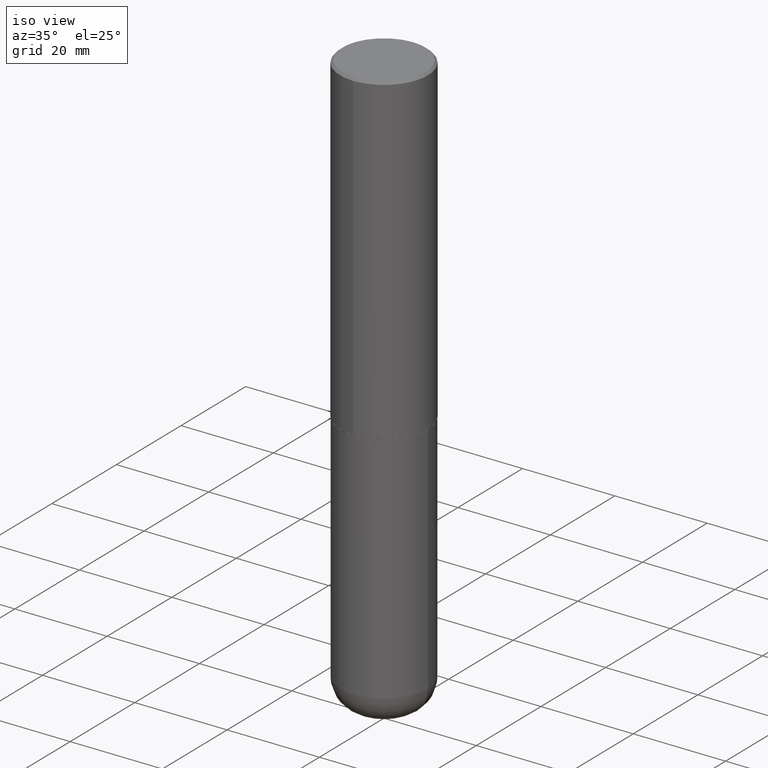
[diagram: clean part render]
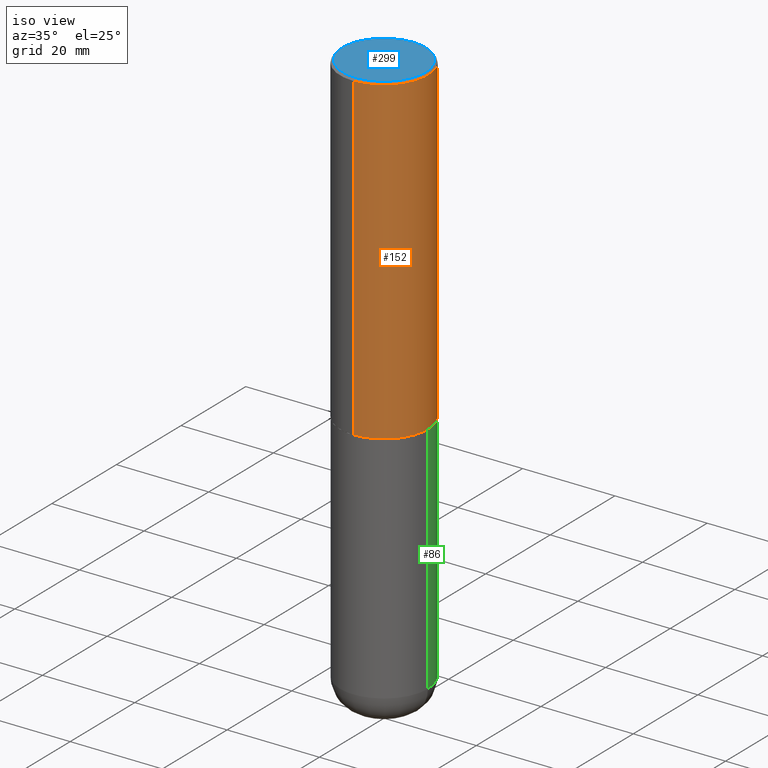
[diagram: same view with three faces highlighted in distinct colors, each labeled with its STEP entity id]
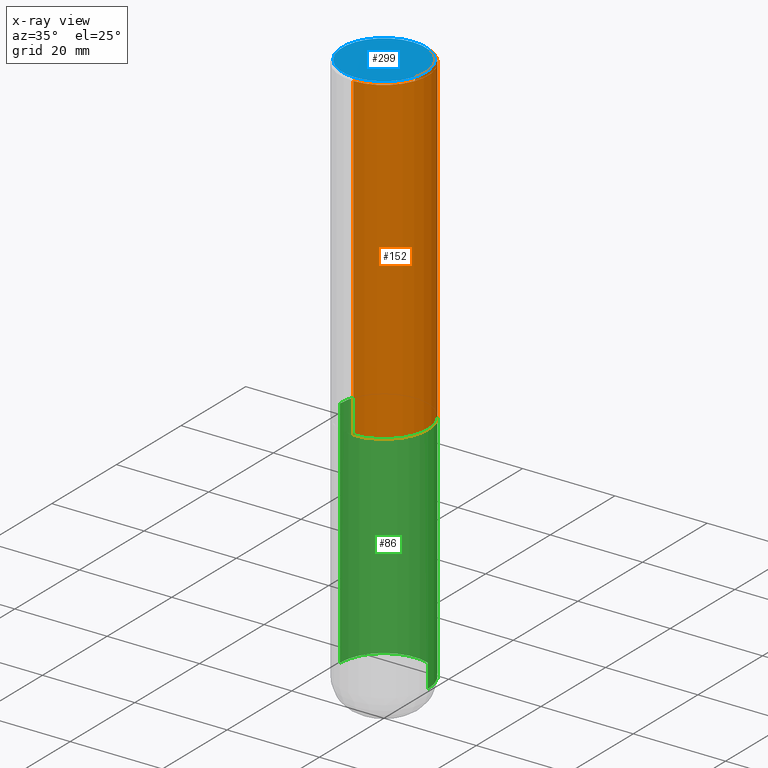
[diagram: x-ray of the same camera — body ghosted, the three highlighted faces saturated]
A machine part, iso view with three faces highlighted in distinct colors.
The next image is the same camera in x-ray (body ghosted, the three faces saturated) — at least one of them is partly hidden behind the body in this view.
Their STEP definitions:

[orange] entity #152 — the highlighted cylindrical surface (partial cylindrical patch) has radius 9.525 mm, axis along (-0, 0, 1).
#6 = DIRECTION ( 'NONE',  ( -2.446040391741596606E-29, 3.490662795793665557E-15, 1.000000000000000000 ) ) ;
#16 = ORIENTED_EDGE ( 'NONE', *, *, #169, .T. ) ;
#26 = CARTESIAN_POINT ( 'NONE',  ( 2.618611004132350411E-15, 0.3749999999999999445, -0.02000000000000139513 ) ) ;
#48 = DIRECTION ( 'NONE',  ( -2.446040391741596606E-29, 3.490662795793665557E-15, 1.000000000000000000 ) ) ;
#51 = EDGE_CURVE ( 'NONE', #219, #175, #197, .T. ) ;
#54 = AXIS2_PLACEMENT_3D ( 'NONE', #114, #48, #309 ) ;
#101 = VERTEX_POINT ( 'NONE', #26 ) ;
#108 = DIRECTION ( 'NONE',  ( -2.446040391741596606E-29, 3.490662795793665557E-15, 1.000000000000000000 ) ) ;
#113 = AXIS2_PLACEMENT_3D ( 'NONE', #397, #108, #243 ) ;
#114 = CARTESIAN_POINT ( 'NONE',  ( 6.724165036897648492E-29, -9.595832025636787455E-15, -2.749000000000000110 ) ) ;
#126 = CYLINDRICAL_SURFACE ( 'NONE', #178, 0.3750000000000002220 ) ;
#130 = DIRECTION ( 'NONE',  ( -2.446040391741596606E-29, 3.490662795793665557E-15, 1.000000000000000000 ) ) ;
#146 = VERTEX_POINT ( 'NONE', #192 ) ;
#148 = VECTOR ( 'NONE', #6, 39.37007874015748143 ) ;
#152 = ADVANCED_FACE ( 'NONE', ( #196 ), #126, .T. ) ;
#169 = EDGE_CURVE ( 'NONE', #175, #101, #381, .T. ) ;
#175 = VERTEX_POINT ( 'NONE', #355 ) ;
#178 = AXIS2_PLACEMENT_3D ( 'NONE', #352, #130, #258 ) ;
#189 = CARTESIAN_POINT ( 'NONE',  ( 2.664535259100376880E-15, 0.3750000000000002220, -1.308998548422625521E-15 ) ) ;
#192 = CARTESIAN_POINT ( 'NONE',  ( -2.572686749164323547E-15, -0.3750000000000001110, -0.01999999999999877570 ) ) ;
#194 = DIRECTION ( 'NONE',  ( -2.446040391741596606E-29, 3.490662795793665557E-15, 1.000000000000000000 ) ) ;
#196 = FACE_OUTER_BOUND ( 'NONE', #393, .T. ) ;
#197 = CIRCLE ( 'NONE', #54, 0.3750000000000003886 ) ;
#206 = ORIENTED_EDGE ( 'NONE', *, *, #408, .F. ) ;
#219 = VERTEX_POINT ( 'NONE', #227 ) ;
#227 = CARTESIAN_POINT ( 'NONE',  ( -2.618611004132284935E-15, -0.3750000000000099920, -2.748999999999999222 ) ) ;
#237 = LINE ( 'NONE', #392, #148 ) ;
#243 = DIRECTION ( 'NONE',  ( -6.982962677686265922E-15, -1.000000000000000000, 3.494488891895536035E-15 ) ) ;
#258 = DIRECTION ( 'NONE',  ( -6.982962677686266711E-15, -1.000000000000000000, 3.490662795793665951E-15 ) ) ;
#267 = ORIENTED_EDGE ( 'NONE', *, *, #331, .F. ) ;
#297 = CIRCLE ( 'NONE', #113, 0.3750000000000000555 ) ;
#309 = DIRECTION ( 'NONE',  ( -6.982962677686265922E-15, -1.000000000000000000, 2.913971193241877611E-15 ) ) ;
#322 = VECTOR ( 'NONE', #194, 39.37007874015748143 ) ;
#331 = EDGE_CURVE ( 'NONE', #219, #146, #237, .T. ) ;
#337 = ORIENTED_EDGE ( 'NONE', *, *, #51, .T. ) ;
#352 = CARTESIAN_POINT ( 'NONE',  ( 0.000000000000000000, 0.000000000000000000, 0.000000000000000000 ) ) ;
#355 = CARTESIAN_POINT ( 'NONE',  ( 2.664535259100411196E-15, 0.3749999999999907296, -2.749000000000000998 ) ) ;
#381 = LINE ( 'NONE', #189, #322 ) ;
#392 = CARTESIAN_POINT ( 'NONE',  ( -2.618611004132351594E-15, -0.3750000000000002220, 1.308998548422625521E-15 ) ) ;
#393 = EDGE_LOOP ( 'NONE', ( #337, #16, #206, #267 ) ) ;
#397 = CARTESIAN_POINT ( 'NONE',  ( 4.892080783483214581E-31, -6.981325591587361238E-17, -0.02000000000000008715 ) ) ;
#408 = EDGE_CURVE ( 'NONE', #146, #101, #297, .T. ) ;

[blue] entity #299 — the highlighted planar face has unit normal (0, -0, -1).
#14 = ORIENTED_EDGE ( 'NONE', *, *, #173, .T. ) ;
#20 = EDGE_CURVE ( 'NONE', #395, #275, #378, .T. ) ;
#45 = EDGE_LOOP ( 'NONE', ( #296, #14 ) ) ;
#147 = DIRECTION ( 'NONE',  ( -6.982962677686265922E-15, -1.000000000000000000, 3.490662795793665557E-15 ) ) ;
#154 = DIRECTION ( 'NONE',  ( -2.446040391741596606E-29, 3.490662795793665557E-15, 1.000000000000000000 ) ) ;
#170 = CARTESIAN_POINT ( 'NONE',  ( 2.548781377355487113E-15, 0.3549999999999999822, -1.192522237898212341E-15 ) ) ;
#173 = EDGE_CURVE ( 'NONE', #275, #395, #242, .T. ) ;
#176 = FACE_OUTER_BOUND ( 'NONE', #45, .T. ) ;
#200 = DIRECTION ( 'NONE',  ( 2.446040391741596045E-29, -3.490662795793665557E-15, -1.000000000000000000 ) ) ;
#221 = CARTESIAN_POINT ( 'NONE',  ( -2.504081769186608216E-15, -0.3549999999999999822, 1.285848347115290366E-15 ) ) ;
#231 = CARTESIAN_POINT ( 'NONE',  ( -1.141397163745304909E-45, 1.628849886601155835E-31, 4.666305460853910467E-17 ) ) ;
#242 = CIRCLE ( 'NONE', #341, 0.3549999999999999822 ) ;
#265 = CARTESIAN_POINT ( 'NONE',  ( 2.478951750578624209E-15, 0.3549999999999999822, -1.215853765202481601E-15 ) ) ;
#266 = AXIS2_PLACEMENT_3D ( 'NONE', #265, #200, #301 ) ;
#275 = VERTEX_POINT ( 'NONE', #221 ) ;
#296 = ORIENTED_EDGE ( 'NONE', *, *, #20, .T. ) ;
#298 = PLANE ( 'NONE',  #266 ) ;
#299 = ADVANCED_FACE ( 'NONE', ( #176 ), #298, .F. ) ;
#301 = DIRECTION ( 'NONE',  ( 6.982962677686265922E-15, 1.000000000000000000, -3.490662795793665557E-15 ) ) ;
#320 = DIRECTION ( 'NONE',  ( -6.982962677686265922E-15, -1.000000000000000000, 3.490662795793665557E-15 ) ) ;
#341 = AXIS2_PLACEMENT_3D ( 'NONE', #231, #387, #320 ) ;
#376 = CARTESIAN_POINT ( 'NONE',  ( -1.141397163745304909E-45, 1.628849886601155835E-31, 4.666305460853910467E-17 ) ) ;
#378 = CIRCLE ( 'NONE', #410, 0.3549999999999999822 ) ;
#387 = DIRECTION ( 'NONE',  ( -2.446040391741596606E-29, 3.490662795793665557E-15, 1.000000000000000000 ) ) ;
#395 = VERTEX_POINT ( 'NONE', #170 ) ;
#410 = AXIS2_PLACEMENT_3D ( 'NONE', #376, #154, #147 ) ;

[green] entity #86 — the highlighted cylindrical surface (partial cylindrical patch) has radius 9.525 mm, axis along (-0, 0, 1).
#21 = CARTESIAN_POINT ( 'NONE',  ( 0.000000000000000000, 0.000000000000000000, 0.000000000000000000 ) ) ;
#29 = DIRECTION ( 'NONE',  ( -2.445468806185136877E-29, 3.491481338843145188E-15, 1.000000000000000000 ) ) ;
#40 = DIRECTION ( 'NONE',  ( 1.000000000000000000, -6.982962677686266711E-15, 0.000000000000000000 ) ) ;
#52 = DIRECTION ( 'NONE',  ( 1.000000000000000000, -6.982962677686266711E-15, 4.876176775795935793E-29 ) ) ;
#56 = CARTESIAN_POINT ( 'NONE',  ( 0.3749999999999999445, -2.618611004132349622E-15, 1.828566290923475642E-29 ) ) ;
#60 = CARTESIAN_POINT ( 'NONE',  ( -0.3750000000000002220, -1.392000110040456296E-14, -4.750000000000000000 ) ) ;
#86 = ADVANCED_FACE ( 'NONE', ( #183 ), #281, .T. ) ;
#92 = CARTESIAN_POINT ( 'NONE',  ( 1.161597682937940108E-28, -1.658453635950494339E-14, -4.750000000000000000 ) ) ;
#105 = ORIENTED_EDGE ( 'NONE', *, *, #286, .F. ) ;
#106 = EDGE_CURVE ( 'NONE', #245, #117, #107, .T. ) ;
#107 = CIRCLE ( 'NONE', #311, 0.3749999999999999445 ) ;
#117 = VERTEX_POINT ( 'NONE', #60 ) ;
#136 = ORIENTED_EDGE ( 'NONE', *, *, #106, .T. ) ;
#139 = CARTESIAN_POINT ( 'NONE',  ( 6.725039217009124520E-29, -9.601573681818649859E-15, -2.750000000000000000 ) ) ;
#174 = DIRECTION ( 'NONE',  ( -2.445468806185136877E-29, 3.491481338843145188E-15, 1.000000000000000000 ) ) ;
#181 = ORIENTED_EDGE ( 'NONE', *, *, #396, .T. ) ;
#183 = FACE_OUTER_BOUND ( 'NONE', #398, .T. ) ;
#202 = LINE ( 'NONE', #294, #411 ) ;
#240 = CARTESIAN_POINT ( 'NONE',  ( -0.3750000000000000555, -1.042851976156142014E-14, -2.750000000000000000 ) ) ;
#245 = VERTEX_POINT ( 'NONE', #350 ) ;
#268 = CARTESIAN_POINT ( 'NONE',  ( 0.3750000000000000555, -1.222018468595100145E-14, -2.750000000000000000 ) ) ;
#272 = ORIENTED_EDGE ( 'NONE', *, *, #379, .F. ) ;
#273 = DIRECTION ( 'NONE',  ( -2.445468806185136597E-29, 3.491481338843145583E-15, 1.000000000000000000 ) ) ;
#281 = CYLINDRICAL_SURFACE ( 'NONE', #315, 0.3749999999999999445 ) ;
#282 = VECTOR ( 'NONE', #29, 39.37007874015748143 ) ;
#286 = EDGE_CURVE ( 'NONE', #245, #327, #348, .T. ) ;
#287 = DIRECTION ( 'NONE',  ( 1.000000000000000000, -6.982962677686269077E-15, 0.000000000000000000 ) ) ;
#293 = DIRECTION ( 'NONE',  ( -2.445468806185136597E-29, 3.491481338843145583E-15, 1.000000000000000000 ) ) ;
#294 = CARTESIAN_POINT ( 'NONE',  ( -0.3749999999999999445, 2.664535259100375303E-15, -1.844600658845589318E-29 ) ) ;
#300 = VERTEX_POINT ( 'NONE', #240 ) ;
#311 = AXIS2_PLACEMENT_3D ( 'NONE', #92, #293, #287 ) ;
#315 = AXIS2_PLACEMENT_3D ( 'NONE', #21, #343, #52 ) ;
#327 = VERTEX_POINT ( 'NONE', #268 ) ;
#343 = DIRECTION ( 'NONE',  ( -2.445468806185136597E-29, 3.491481338843145583E-15, 1.000000000000000000 ) ) ;
#348 = LINE ( 'NONE', #56, #282 ) ;
#350 = CARTESIAN_POINT ( 'NONE',  ( 0.3750000000000002220, -1.920314736363729341E-14, -4.750000000000000000 ) ) ;
#374 = CIRCLE ( 'NONE', #385, 0.3750000000000000555 ) ;
#379 = EDGE_CURVE ( 'NONE', #327, #300, #374, .T. ) ;
#385 = AXIS2_PLACEMENT_3D ( 'NONE', #139, #273, #40 ) ;
#396 = EDGE_CURVE ( 'NONE', #117, #300, #202, .T. ) ;
#398 = EDGE_LOOP ( 'NONE', ( #136, #181, #272, #105 ) ) ;
#411 = VECTOR ( 'NONE', #174, 39.37007874015748143 ) ;